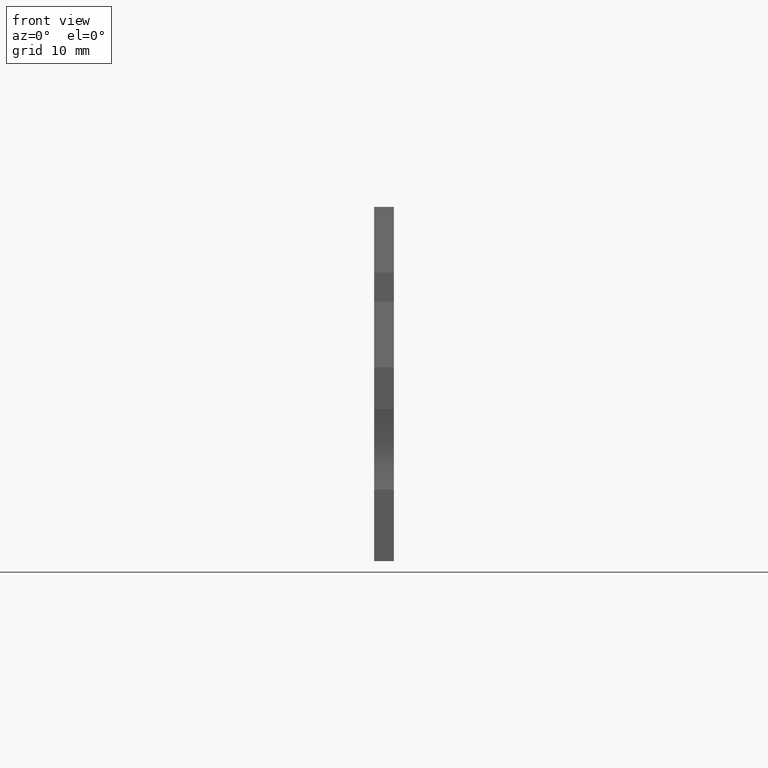
[diagram: clean part render]
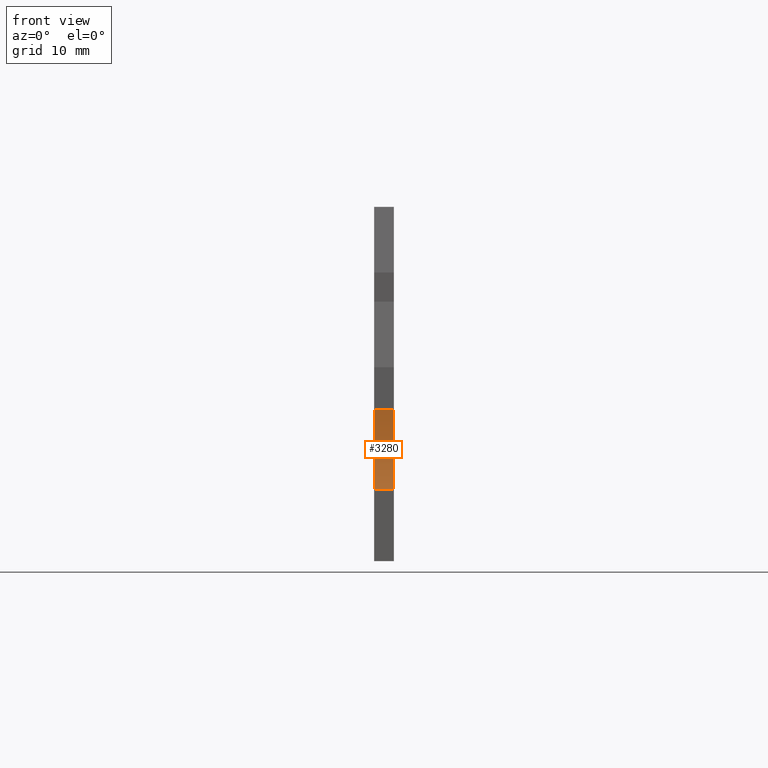
[diagram: same view with one face highlighted and labeled with its STEP entity id]
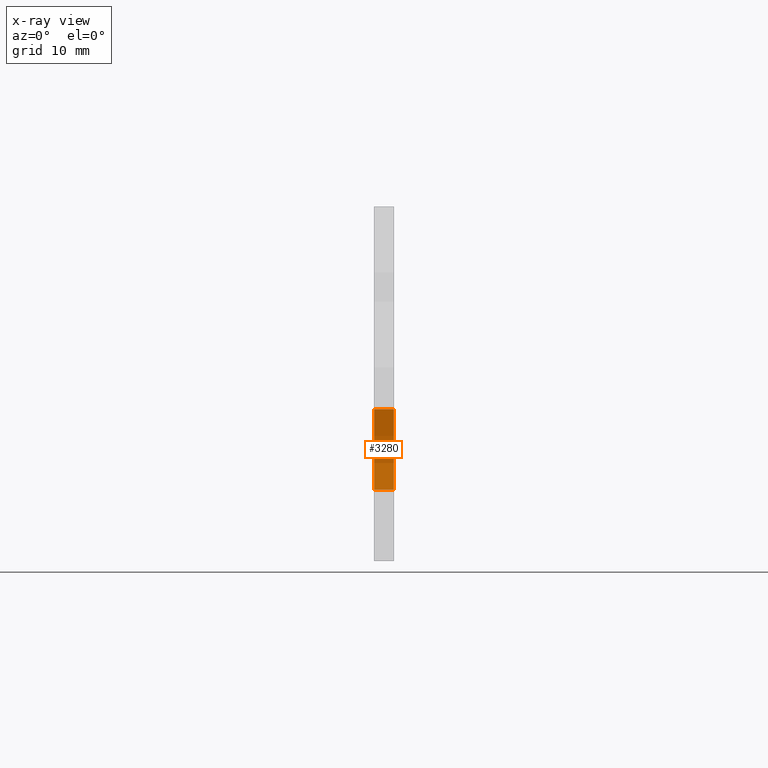
[diagram: x-ray of the same camera — body ghosted, the highlighted face saturated]
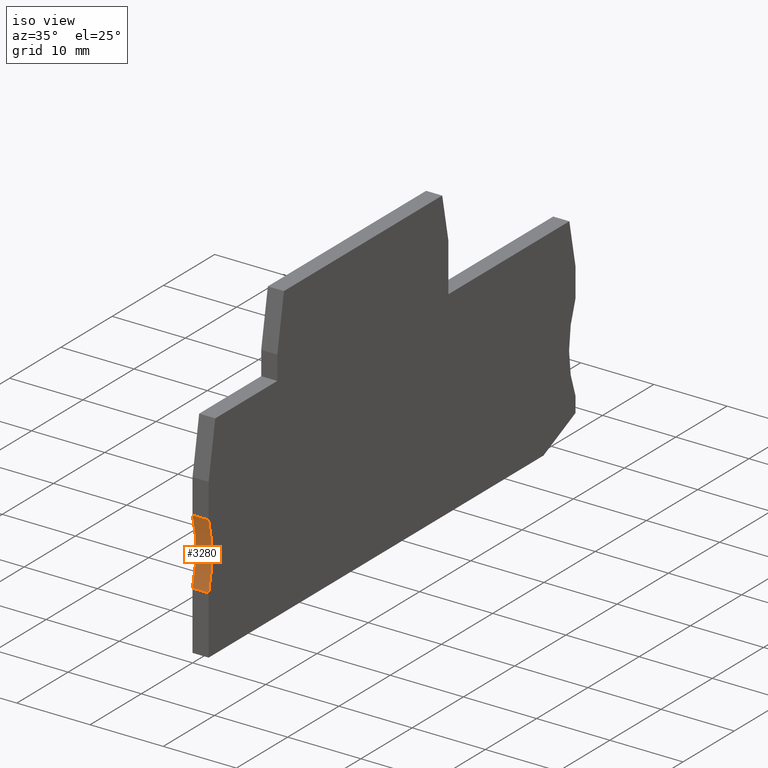
[diagram: same view with one face highlighted and labeled with its STEP entity id]
A machine part, front view. The second image highlights one B-rep face of the part: STEP entity #3280.
The next image is the same camera in x-ray: the body ghosted, the highlighted face saturated — about 0% of this face is hidden behind the body in this view.
A second angle (iso view) of the same face is appended — the face is thin or edge-on in the first view.
In plain terms, the highlighted cylindrical surface (partial cylindrical patch) has radius 15 mm, axis along (-1, 0, -0).
Its self-contained STEP definition (entity closure, byte-faithful):
#600=CARTESIAN_POINT('',(47.8573958538972,-21.2000000000006,53.67));
#610=VERTEX_POINT('',#600);
#640=CARTESIAN_POINT('',(33.5483078326437,-25.7000000000027,53.67));
#650=DIRECTION('',(0.,0.,-1.));
#660=DIRECTION('',(-1.,0.,0.));
#670=AXIS2_PLACEMENT_3D('',#640,#650,#660);
#680=CIRCLE('',#670,15.);
#690=CARTESIAN_POINT('',(47.8573958538972,-30.2000000000048,53.67));
#700=VERTEX_POINT('',#690);
#710=EDGE_CURVE('',#610,#700,#680,.T.);
#2300=CARTESIAN_POINT('',(47.8573958538972,-30.2000000000048,55.87));
#2310=VERTEX_POINT('',#2300);
#2340=CARTESIAN_POINT('',(33.5483078326437,-25.7000000000027,55.87));
#2350=DIRECTION('',(0.,0.,-1.));
#2360=DIRECTION('',(-1.,0.,0.));
#2370=AXIS2_PLACEMENT_3D('',#2340,#2350,#2360);
#2380=CIRCLE('',#2370,15.);
#2390=CARTESIAN_POINT('',(47.8573958538972,-21.2000000000006,55.87));
#2400=VERTEX_POINT('',#2390);
#2410=EDGE_CURVE('',#2400,#2310,#2380,.T.);
#3070=CARTESIAN_POINT('',(33.5483078326437,-25.7000000000027,53.67));
#3080=DIRECTION('',(0.,0.,-1.));
#3090=DIRECTION('',(-1.,0.,0.));
#3100=AXIS2_PLACEMENT_3D('',#3070,#3080,#3090);
#3110=CYLINDRICAL_SURFACE('',#3100,15.);
#3120=ORIENTED_EDGE('',*,*,#710,.T.);
#3130=CARTESIAN_POINT('',(47.8573958538972,-21.2000000000006,53.67));
#3140=DIRECTION('',(0.,0.,-1.));
#3150=VECTOR('',#3140,1.);
#3160=LINE('',#3130,#3150);
#3170=EDGE_CURVE('',#2400,#610,#3160,.T.);
#3180=ORIENTED_EDGE('',*,*,#3170,.T.);
#3190=ORIENTED_EDGE('',*,*,#2410,.F.);
#3200=CARTESIAN_POINT('',(47.8573958538972,-30.2000000000048,53.67));
#3210=DIRECTION('',(0.,0.,-1.));
#3220=VECTOR('',#3210,1.);
#3230=LINE('',#3200,#3220);
#3240=EDGE_CURVE('',#2310,#700,#3230,.T.);
#3250=ORIENTED_EDGE('',*,*,#3240,.F.);
#3260=EDGE_LOOP('',(#3250,#3190,#3180,#3120));
#3270=FACE_OUTER_BOUND('',#3260,.T.);
#3280=ADVANCED_FACE('',(#3270),#3110,.F.);